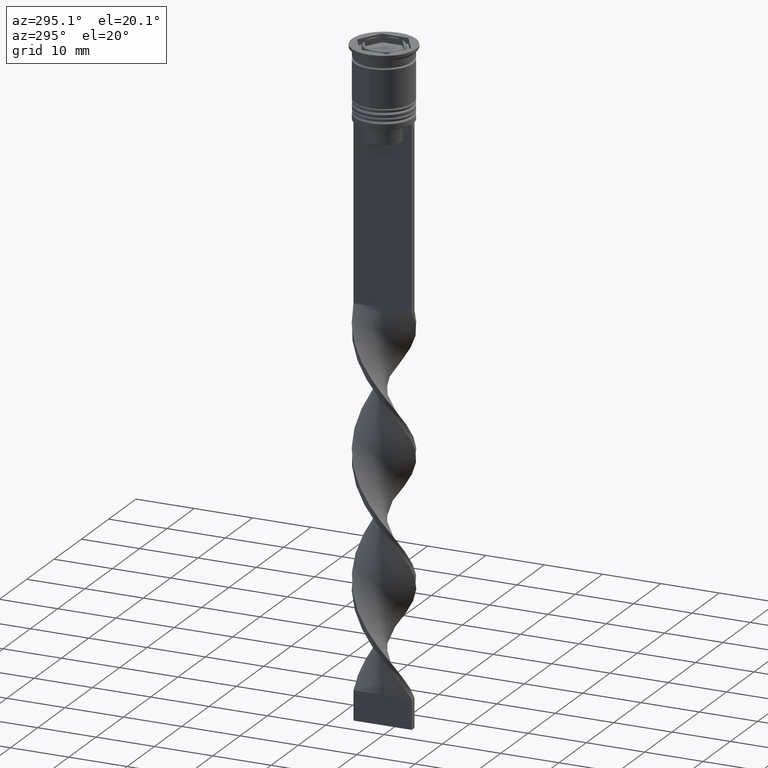
[diagram: clean part render]
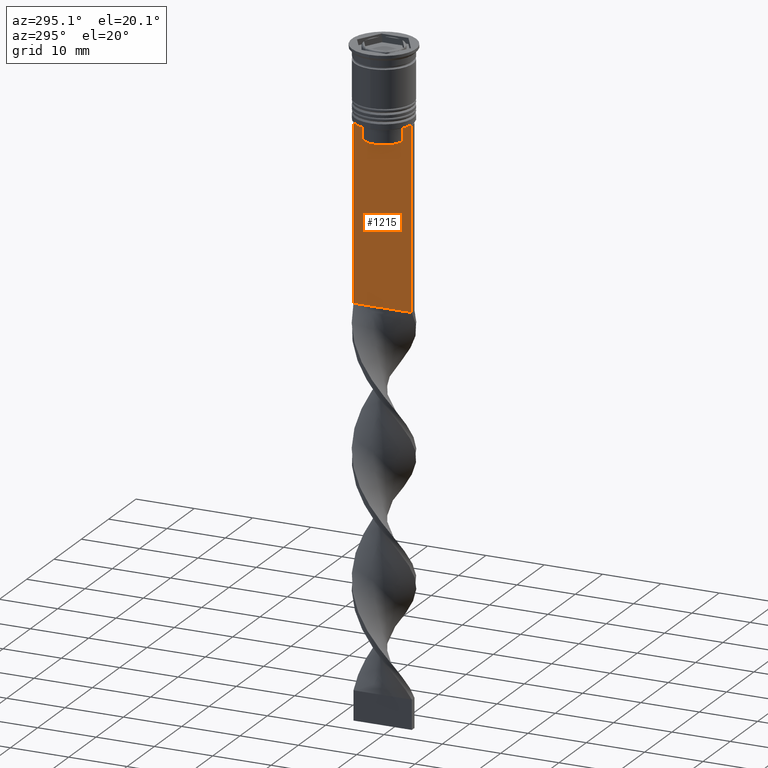
[diagram: same view with one face highlighted and labeled with its STEP entity id]
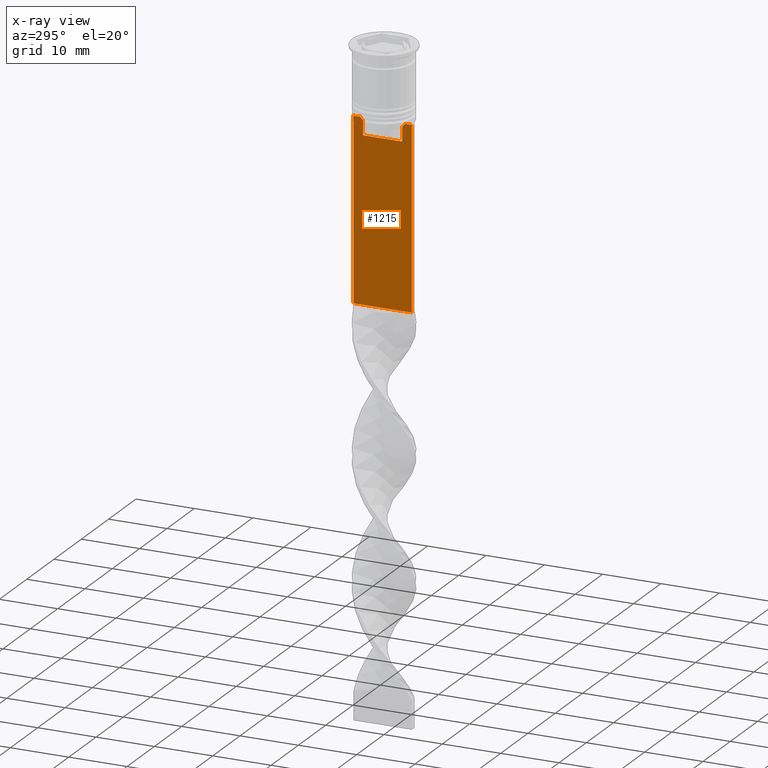
[diagram: x-ray of the same camera — body ghosted, the highlighted face saturated]
A machine part, auxiliary view. The second image highlights one B-rep face of the part: STEP entity #1215.
The next image is the same camera in x-ray: the body ghosted, the highlighted face saturated — about 0% of this face is hidden behind the body in this view.
In plain terms, the highlighted planar face has unit normal (-1, 0, 0).
Its self-contained STEP definition (entity closure, byte-faithful):
#4 = CARTESIAN_POINT ( 'NONE',  ( -0.5000000000000000000, -4.999999999999999112, -12.50000000000000000 ) ) ;
#9 = CARTESIAN_POINT ( 'NONE',  ( -0.5000000000000000000, -3.699658232838647365, -12.66676999593996555 ) ) ;
#20 = VERTEX_POINT ( 'NONE', #335 ) ;
#37 = ORIENTED_EDGE ( 'NONE', *, *, #1187, .F. ) ;
#142 = EDGE_CURVE ( 'NONE', #1990, #20, #1942, .T. ) ;
#165 = ORIENTED_EDGE ( 'NONE', *, *, #2681, .F. ) ;
#180 = ORIENTED_EDGE ( 'NONE', *, *, #1259, .F. ) ;
#181 = CARTESIAN_POINT ( 'NONE',  ( -0.5000000000000000000, -3.363034344160045652, -15.50000000000000000 ) ) ;
#185 = ORIENTED_EDGE ( 'NONE', *, *, #3023, .F. ) ;
#245 = VECTOR ( 'NONE', #1120, 1000.000000000000000 ) ;
#272 = CARTESIAN_POINT ( 'NONE',  ( -0.5000000000000000000, 3.363034344160045208, -13.00000000000000178 ) ) ;
#306 = CARTESIAN_POINT ( 'NONE',  ( -0.5000000000000000000, -4.999999999999999112, -2.450124378879110054 ) ) ;
#316 = VECTOR ( 'NONE', #3508, 1000.000000000000000 ) ;
#335 = CARTESIAN_POINT ( 'NONE',  ( -0.5000000000000000000, -4.874423042781575788, -12.50000000000000000 ) ) ;
#383 = LINE ( 'NONE', #4, #1132 ) ;
#399 = CARTESIAN_POINT ( 'NONE',  ( -0.5000000000000000000, 3.363034344160045208, -13.00000000000000178 ) ) ;
#444 = ORIENTED_EDGE ( 'NONE', *, *, #2773, .F. ) ;
#489 = VECTOR ( 'NONE', #764, 1000.000000000000000 ) ;
#513 = DIRECTION ( 'NONE',  ( 0.000000000000000000, -1.000000000000000000, 0.000000000000000000 ) ) ;
#560 = DIRECTION ( 'NONE',  ( -1.000000000000000000, 0.000000000000000000, 0.000000000000000000 ) ) ;
#574 = DIRECTION ( 'NONE',  ( 0.000000000000000000, -1.000000000000000000, 0.000000000000000000 ) ) ;
#576 = CARTESIAN_POINT ( 'NONE',  ( -0.5000000000000000000, 3.699657965831574913, -12.66677026074361301 ) ) ;
#594 = LINE ( 'NONE', #1503, #2048 ) ;
#609 = ORIENTED_EDGE ( 'NONE', *, *, #142, .F. ) ;
#610 = VERTEX_POINT ( 'NONE', #181 ) ;
#616 = DIRECTION ( 'NONE',  ( 0.000000000000000000, 0.000000000000000000, -1.000000000000000000 ) ) ;
#618 = LINE ( 'NONE', #2912, #782 ) ;
#640 = EDGE_CURVE ( 'NONE', #3185, #610, #2841, .T. ) ;
#740 = VERTEX_POINT ( 'NONE', #964 ) ;
#764 = DIRECTION ( 'NONE',  ( -0.000000000000000000, -0.000000000000000000, 1.000000000000000000 ) ) ;
#782 = VECTOR ( 'NONE', #2072, 1000.000000000000000 ) ;
#791 = ORIENTED_EDGE ( 'NONE', *, *, #3227, .F. ) ;
#842 = CARTESIAN_POINT ( 'NONE',  ( -0.5000000000000000000, 3.363034344160045208, 0.000000000000000000 ) ) ;
#859 = LINE ( 'NONE', #306, #2648 ) ;
#889 = ORIENTED_EDGE ( 'NONE', *, *, #1717, .T. ) ;
#964 = CARTESIAN_POINT ( 'NONE',  ( -0.5000000000000000000, 3.867815921162742754, -12.50000000000000000 ) ) ;
#972 = VECTOR ( 'NONE', #2849, 1000.000000000000000 ) ;
#1088 = LINE ( 'NONE', #842, #245 ) ;
#1112 = VERTEX_POINT ( 'NONE', #2554 ) ;
#1120 = DIRECTION ( 'NONE',  ( 0.000000000000000000, 0.000000000000000000, -1.000000000000000000 ) ) ;
#1132 = VECTOR ( 'NONE', #574, 1000.000000000000000 ) ;
#1142 = CARTESIAN_POINT ( 'NONE',  ( -0.5000000000000000000, -3.867815921162742754, -12.50000000000000000 ) ) ;
#1187 = EDGE_CURVE ( 'NONE', #2980, #3185, #1088, .T. ) ;
#1189 = ORIENTED_EDGE ( 'NONE', *, *, #2613, .F. ) ;
#1197 = LINE ( 'NONE', #2088, #316 ) ;
#1215 = ADVANCED_FACE ( 'NONE', ( #1961 ), #3432, .T. ) ;
#1259 = EDGE_CURVE ( 'NONE', #2682, #1990, #3270, .T. ) ;
#1350 = CARTESIAN_POINT ( 'NONE',  ( -0.5000000000000000000, -4.999999999999999112, -2.450124378879110054 ) ) ;
#1392 = CARTESIAN_POINT ( 'NONE',  ( -0.5000000000000000000, -3.531412985305424801, -12.83345201382502765 ) ) ;
#1400 = ORIENTED_EDGE ( 'NONE', *, *, #1748, .F. ) ;
#1414 = ORIENTED_EDGE ( 'NONE', *, *, #2864, .F. ) ;
#1503 = CARTESIAN_POINT ( 'NONE',  ( -0.5000000000000000000, 5.000000000000000888, -2.450124378879110054 ) ) ;
#1562 = VERTEX_POINT ( 'NONE', #2512 ) ;
#1717 = EDGE_CURVE ( 'NONE', #1112, #3404, #594, .T. ) ;
#1723 = CARTESIAN_POINT ( 'NONE',  ( -0.5000000000000000000, -4.999999999999999112, -43.50000000000000000 ) ) ;
#1748 = EDGE_CURVE ( 'NONE', #1562, #740, #383, .T. ) ;
#1921 = AXIS2_PLACEMENT_3D ( 'NONE', #1350, #560, #2801 ) ;
#1928 = VERTEX_POINT ( 'NONE', #3622 ) ;
#1942 = LINE ( 'NONE', #3077, #2111 ) ;
#1961 = FACE_OUTER_BOUND ( 'NONE', #2750, .T. ) ;
#1986 = CARTESIAN_POINT ( 'NONE',  ( -0.5000000000000000000, -3.867815921162742754, -12.50000000000000000 ) ) ;
#1990 = VERTEX_POINT ( 'NONE', #1986 ) ;
#2048 = VECTOR ( 'NONE', #616, 1000.000000000000000 ) ;
#2072 = DIRECTION ( 'NONE',  ( 0.000000000000000000, -1.000000000000000000, 0.000000000000000000 ) ) ;
#2088 = CARTESIAN_POINT ( 'NONE',  ( -0.5000000000000000000, -4.999999999999999112, -12.50000000000000000 ) ) ;
#2111 = VECTOR ( 'NONE', #2214, 1000.000000000000000 ) ;
#2214 = DIRECTION ( 'NONE',  ( 0.000000000000000000, -1.000000000000000000, 0.000000000000000000 ) ) ;
#2233 = CARTESIAN_POINT ( 'NONE',  ( -0.5000000000000000000, -4.999999999999999112, -43.50000000000000000 ) ) ;
#2240 = ORIENTED_EDGE ( 'NONE', *, *, #640, .F. ) ;
#2242 = CARTESIAN_POINT ( 'NONE',  ( -0.5000000000000000000, 3.399999999999998135, -15.50000000000000000 ) ) ;
#2512 = CARTESIAN_POINT ( 'NONE',  ( -0.5000000000000000000, 4.874423042781575788, -12.50000000000000000 ) ) ;
#2554 = CARTESIAN_POINT ( 'NONE',  ( -0.5000000000000000000, 5.000000000000000888, -12.50000000000000000 ) ) ;
#2571 = CARTESIAN_POINT ( 'NONE',  ( -0.5000000000000000000, 3.867815921162742754, -12.50000000000000000 ) ) ;
#2572 = CARTESIAN_POINT ( 'NONE',  ( -0.5000000000000000000, -3.363034344160045208, -13.00000000000000178 ) ) ;
#2608 = DIRECTION ( 'NONE',  ( 0.000000000000000000, 0.000000000000000000, -1.000000000000000000 ) ) ;
#2613 = EDGE_CURVE ( 'NONE', #610, #2682, #3357, .T. ) ;
#2648 = VECTOR ( 'NONE', #2608, 1000.000000000000000 ) ;
#2681 = EDGE_CURVE ( 'NONE', #740, #2980, #3483, .T. ) ;
#2682 = VERTEX_POINT ( 'NONE', #3150 ) ;
#2727 = CARTESIAN_POINT ( 'NONE',  ( -0.5000000000000000000, -3.363034344160045208, 0.000000000000000000 ) ) ;
#2750 = EDGE_LOOP ( 'NONE', ( #165, #1400, #185, #889, #791, #444, #1414, #609, #180, #1189, #2240, #37 ) ) ;
#2773 = EDGE_CURVE ( 'NONE', #1928, #3234, #859, .T. ) ;
#2801 = DIRECTION ( 'NONE',  ( 0.000000000000000000, 0.000000000000000000, 1.000000000000000000 ) ) ;
#2841 = LINE ( 'NONE', #2242, #3106 ) ;
#2849 = DIRECTION ( 'NONE',  ( 0.000000000000000000, 1.000000000000000000, 0.000000000000000000 ) ) ;
#2864 = EDGE_CURVE ( 'NONE', #20, #1928, #1197, .T. ) ;
#2912 = CARTESIAN_POINT ( 'NONE',  ( -0.5000000000000000000, -4.999999999999999112, -12.50000000000000000 ) ) ;
#2980 = VERTEX_POINT ( 'NONE', #399 ) ;
#3023 = EDGE_CURVE ( 'NONE', #1112, #1562, #618, .T. ) ;
#3074 = CARTESIAN_POINT ( 'NONE',  ( -0.5000000000000000000, 3.363034344160045652, -15.50000000000000000 ) ) ;
#3077 = CARTESIAN_POINT ( 'NONE',  ( -0.5000000000000000000, -4.999999999999999112, -12.50000000000000000 ) ) ;
#3106 = VECTOR ( 'NONE', #513, 1000.000000000000000 ) ;
#3148 = LINE ( 'NONE', #2233, #972 ) ;
#3150 = CARTESIAN_POINT ( 'NONE',  ( -0.5000000000000000000, -3.363034344160045208, -13.00000000000000178 ) ) ;
#3185 = VERTEX_POINT ( 'NONE', #3074 ) ;
#3227 = EDGE_CURVE ( 'NONE', #3234, #3404, #3148, .T. ) ;
#3234 = VERTEX_POINT ( 'NONE', #1723 ) ;
#3270 = B_SPLINE_CURVE_WITH_KNOTS ( 'NONE', 3,
 ( #2572, #1392, #9, #1142 ),
 .UNSPECIFIED., .F., .F.,
 ( 4, 4 ),
 ( 0.01632394437298965648, 0.01703543518243618576 ),
 .UNSPECIFIED. ) ;
#3357 = LINE ( 'NONE', #2727, #489 ) ;
#3392 = CARTESIAN_POINT ( 'NONE',  ( -0.5000000000000000000, 3.531412678228260216, -12.83345231756357840 ) ) ;
#3404 = VERTEX_POINT ( 'NONE', #3453 ) ;
#3432 = PLANE ( 'NONE',  #1921 ) ;
#3453 = CARTESIAN_POINT ( 'NONE',  ( -0.5000000000000000000, 5.000000000000000888, -43.50000000000000000 ) ) ;
#3483 = B_SPLINE_CURVE_WITH_KNOTS ( 'NONE', 3,
 ( #2571, #576, #3392, #272 ),
 .UNSPECIFIED., .F., .F.,
 ( 4, 4 ),
 ( 0.006644825462451552783, 0.007355321358912435097 ),
 .UNSPECIFIED. ) ;
#3508 = DIRECTION ( 'NONE',  ( 0.000000000000000000, -1.000000000000000000, 0.000000000000000000 ) ) ;
#3622 = CARTESIAN_POINT ( 'NONE',  ( -0.5000000000000000000, -4.999999999999999112, -12.50000000000000000 ) ) ;